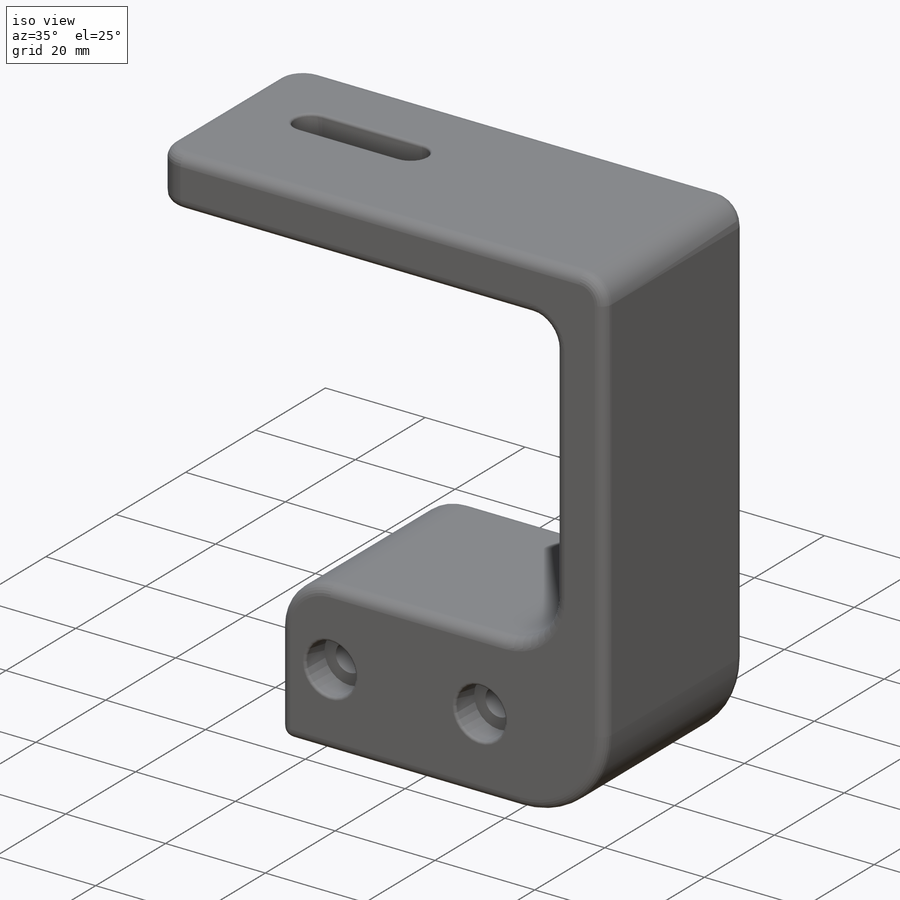
[diagram: iso view]
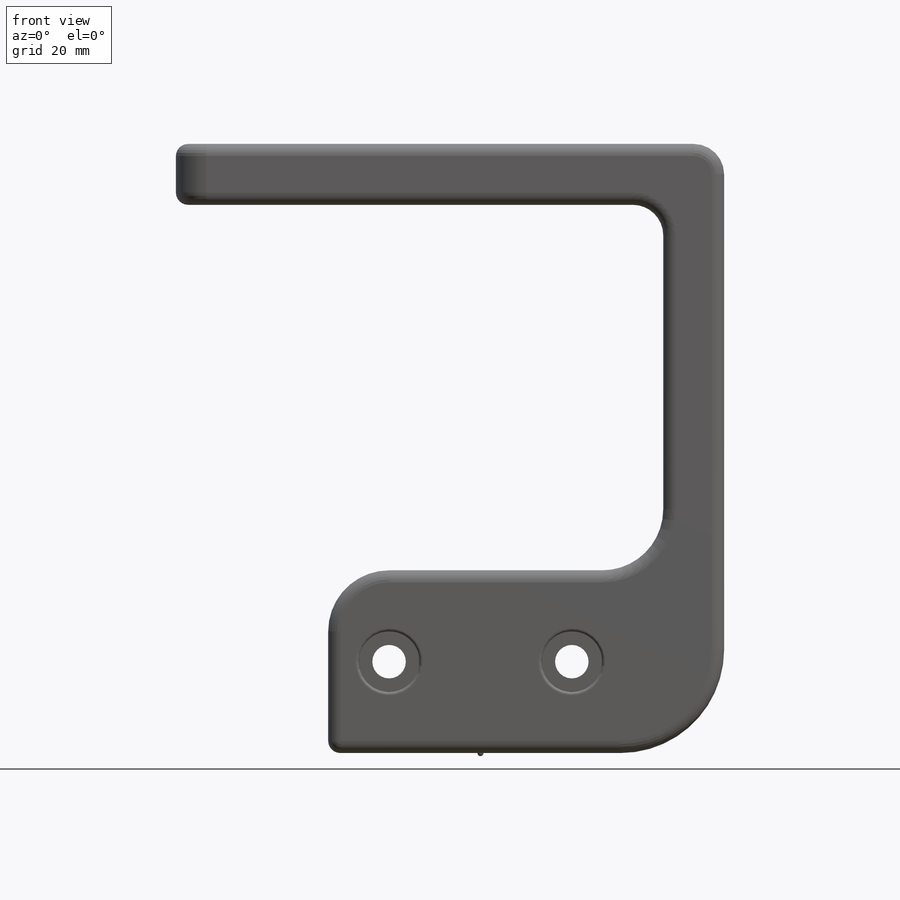
[diagram: front view]
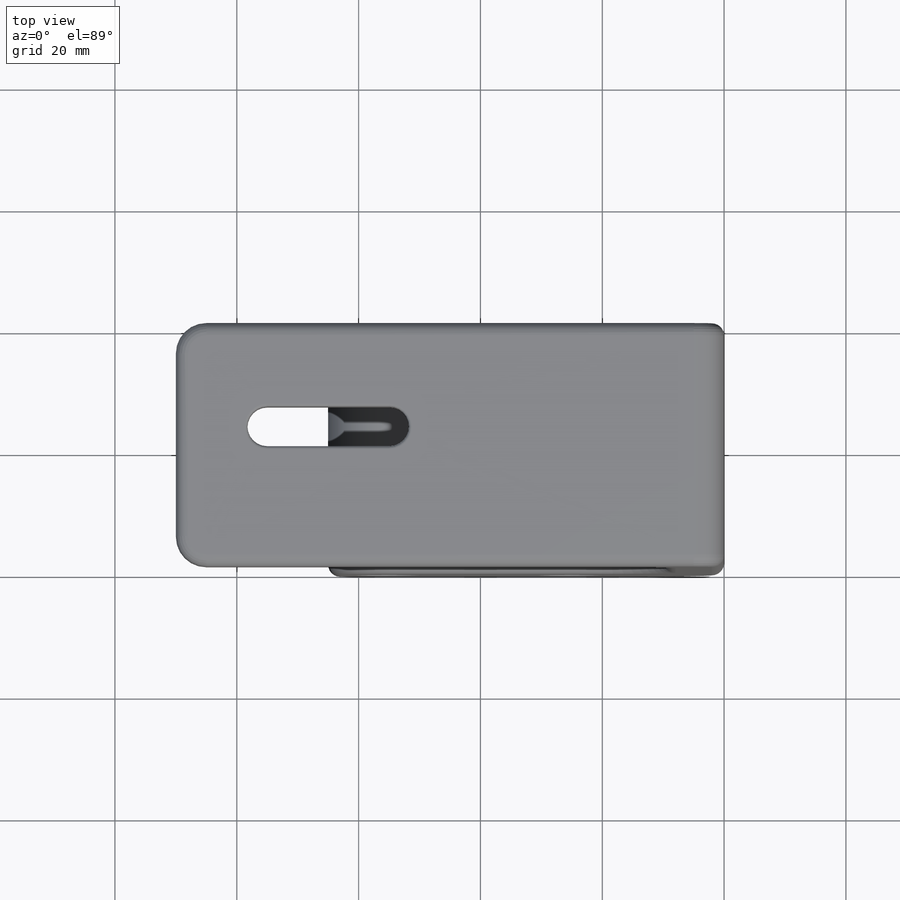
[diagram: top view]
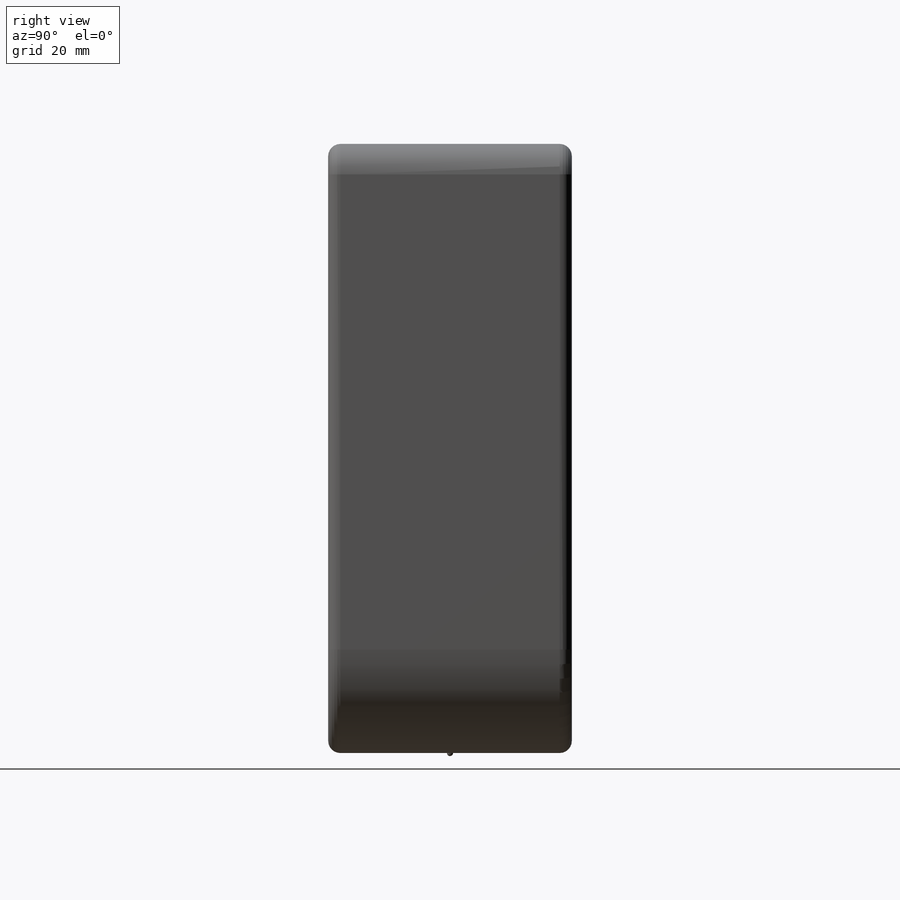
[diagram: right view]
SOLIDWORKS PART (.sldprt)
format: sldprt  version: not decoded by parser v0  size: 507,392 bytes
history: native  units: mm
features: sketch x6, fillet x6, plane x3, cut_extrude x2, material x1, extrude x1, hole x1 (+9 scaffold rows collapsed)
feature tree (29):
  scaffold x9  (default folders/planes/origin — collapsed)
  material  "ABS"
  plane  "Ebene vorne"
  plane  "Ebene oben"
  plane  "Ebene rechts"
  sketch  "Skizze1"  dims[c1.D2=3.0mm c1.D1=5.0mm c2.D2=90.0mm c2.D3=70.0mm c3.D2=90.0mm c3.D1=60.0mm c3.D5=30.0mm c4.D2=10.0mm c4.D4=65.0mm c4.D5=100.0mm c4.D1=25.0mm c5.D2=55.0mm c5.D3=10.0mm c5.D6=30.0mm c5.D7=90.0mm c5.D4=5.0mm]
  extrude  "Aufsatz-Linear austragen1"  Depth=40mm
  sketch  "Skizze3"  dims[D1=6.5mm D2=20.0mm D3=15.0mm D4=17.0mm]
  cut_extrude  "Schnitt-Linear austragen1"  Depth=20mm
  sketch  "Skizze5"  dims[c1.D4=5.5mm c1.D1=30.0mm c1.D2=12.5mm c1.D3=15.0mm c2.D1=15.0mm c2.D2=30.0mm c2.D3=15.0mm]
  sketch  "Skizze7"  dims[c1.D1=8.0mm c1.D2=~6.117824mm c1.D3=8.0mm c2.D2=20.0mm c2.D3=10.0mm]
  cut_extrude  "Schnitt-Linear austragen3"  Depth=12mm
  hole  "Stirnsenkung fur M3 Senkschraube (Kopf Button)1"  Diameter=5.5mm Depth=40mm
  sketch  "3D-Skizze1"
  sketch  "Skizze8"  dims[hole-wizard template sketch: 42 standard entries collapsed; hole parameters kept: c12.Bohrungstiefe=40.0mm c12.Senkdurchmesser2=10.0mm c12.Senktiefe2=5.5mm]
  fillet  "Verrundung5"  Radius=17mm
  fillet  "Verrundung6"  Radius=10mm
  fillet  "Verrundung7"  Radius=10mm
  fillet  "Verrundung9"  Radius=5mm
  fillet  "Verrundung10"  Radius=2mm
  fillet  "Verrundung11"  Radius=0.5mm
decode coverage: 15 of 16 modeling features carry decoded parameters
note: ~ marks probable driven/reference dimensions
note: suppression state not decoded; provenance and decode notes live in map.json
